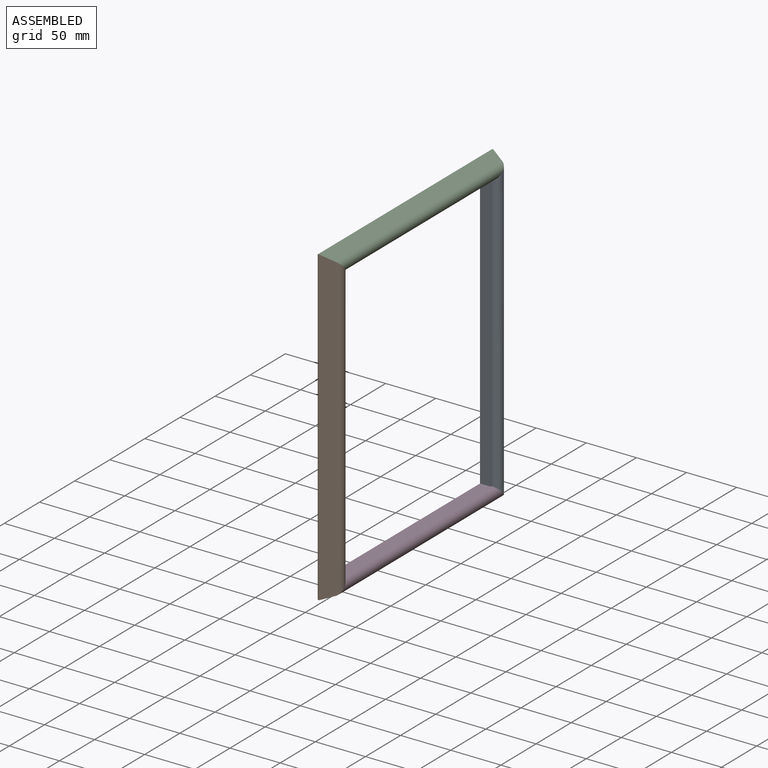
[diagram: assembled view]
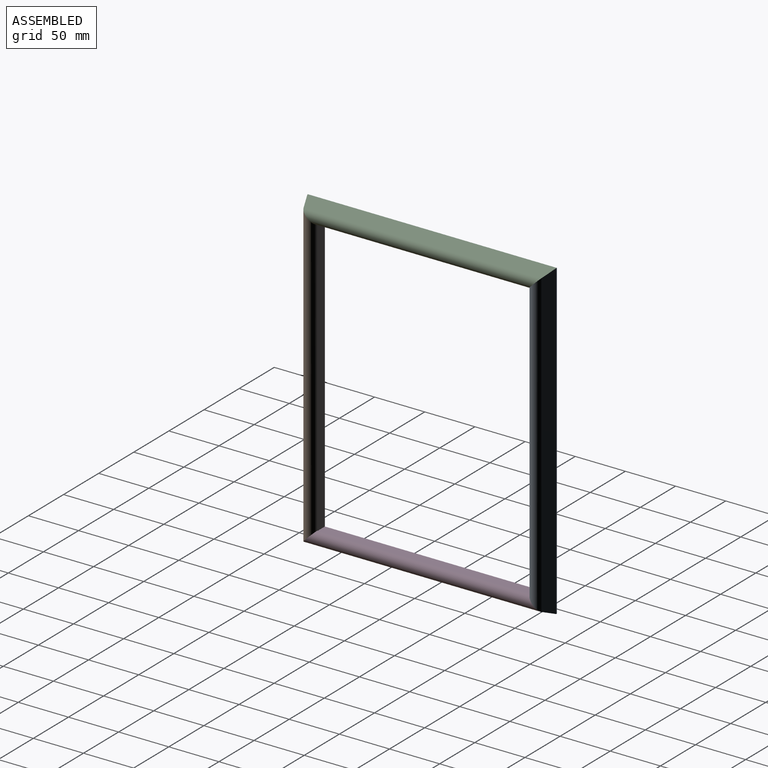
[diagram: assembled view, second angle]
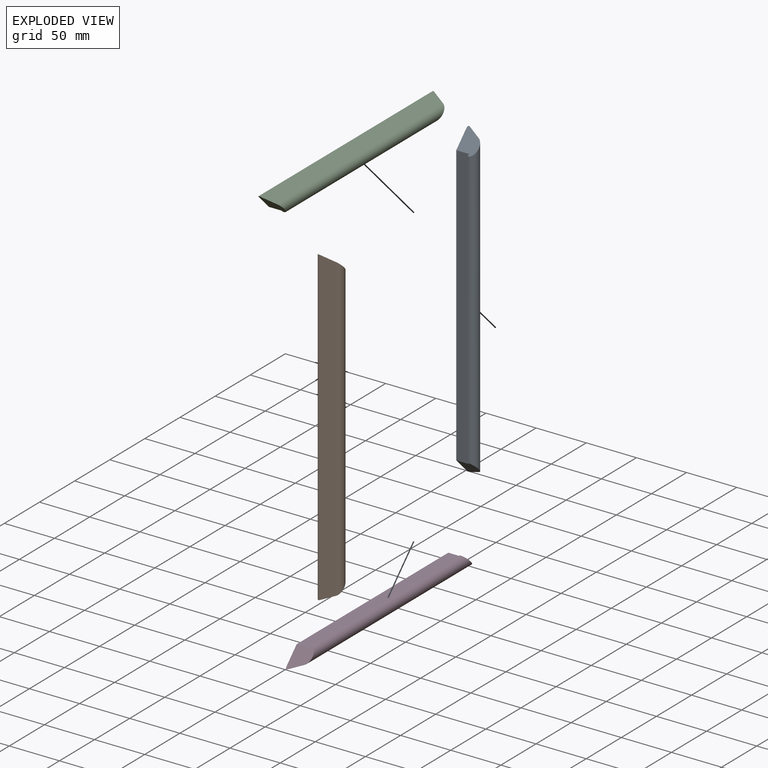
[diagram: exploded view]
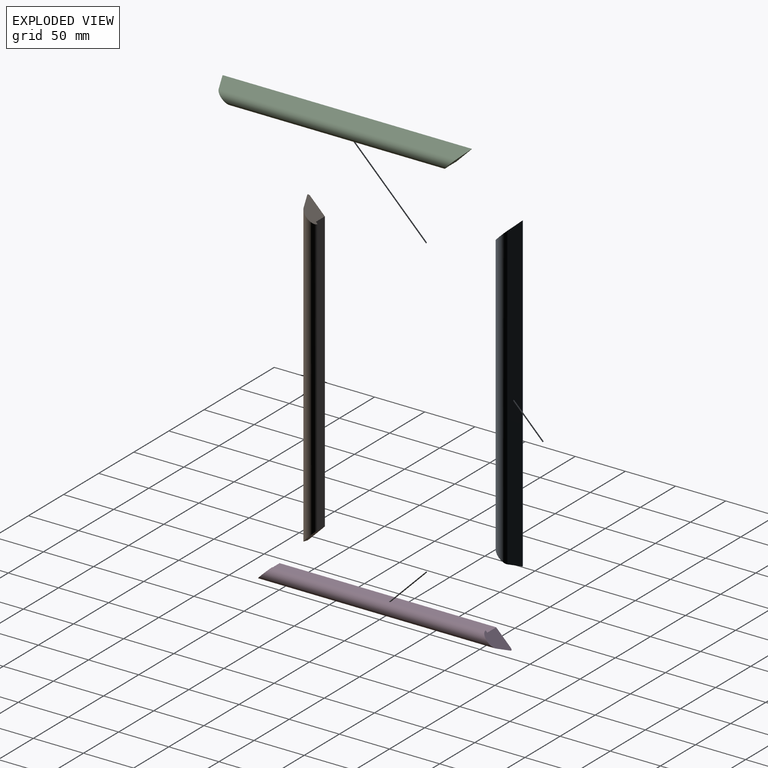
[diagram: exploded view, second angle]
ASSEMBLY  parts=4 mates=3
PART A: 8 faces, bbox 19.1x17.7x311.6 mm
  f0: plane 279.4x12.7mm, normal (0,-1,0), area 3548.4mm2, adj f1,f3,f6,f7
  f1: plane 279.4x1.59mm, normal (-1,0,0), area 441mm2, adj f0,f2,f6,f7
  f2: cylinder r=6.35mm len=300.66mm, axis (0,0,-1), area 5012.5mm2, adj f1,f4,f6,f7
  f3: plane 308.44x14.52mm, normal (-1,0,0), area 4267.8mm2, adj f0,f5,f6,f7
  f4: plane 311.37x12.94mm, normal (0.38,0.92,0), area 4284.5mm2, adj f2,f5,f6,f7
  f5: cylinder r=1.59mm len=311.62mm, axis (0,0,-1), area 968.4mm2, adj f3,f4,f6,f7
  f6: plane 19.05x17.7mm, normal (0,-0.71,-0.71), area 344.6mm2, adj f0,f1,f2,f3,f4,f5
  f7: plane 19.05x17.7mm, normal (0,-0.71,0.71), area 344.6mm2, adj f0,f1,f2,f3,f4,f5
PART B: same geometry as A
PART C: 8 faces, bbox 19.1x17.7x248.1 mm
  f0: plane 215.9x12.7mm, normal (0,-1,0), area 2741.9mm2, adj f1,f3,f6,f7
  f1: plane 215.9x1.59mm, normal (-1,0,0), area 340.2mm2, adj f0,f2,f6,f7
  f2: cylinder r=6.35mm len=237.16mm, axis (0,0,-1), area 3904mm2, adj f1,f4,f6,f7
  f3: plane 244.94x14.52mm, normal (-1,0,0), area 3345.8mm2, adj f0,f5,f6,f7
  f4: plane 247.87x12.94mm, normal (0.38,0.92,0), area 3395.4mm2, adj f2,f5,f6,f7
  f5: cylinder r=1.59mm len=248.12mm, axis (0,0,-1), area 770.5mm2, adj f3,f4,f6,f7
  f6: plane 19.05x17.7mm, normal (0,-0.71,-0.71), area 344.6mm2, adj f0,f1,f2,f3,f4,f5
  f7: plane 19.05x17.7mm, normal (0,-0.71,0.71), area 344.6mm2, adj f0,f1,f2,f3,f4,f5
PART D: same geometry as C
PLACE A at identity fixed
PLACE B rot(axis=(-1,0,0),180deg) t=(0,-249.69,279.4)mm
PLACE C rot(axis=(1,0,0),90deg) t=(0,-16.9,296.3)mm
PLACE D rot(axis=(-1,0,0),90deg) t=(0,-232.8,-16.9)mm
MATE fastened A.f6 <-> D.f7  axis (0,-0.71,-0.71) through (-10.6,-10.36,-6.54)mm
MATE fastened A.f7 <-> C.f6  axis (0,-0.71,0.71) through (-10.6,-10.36,285.94)mm
MATE fastened B.f6 <-> C.f7  axis (0,0.71,0.71) through (-10.6,-239.33,285.94)mm
